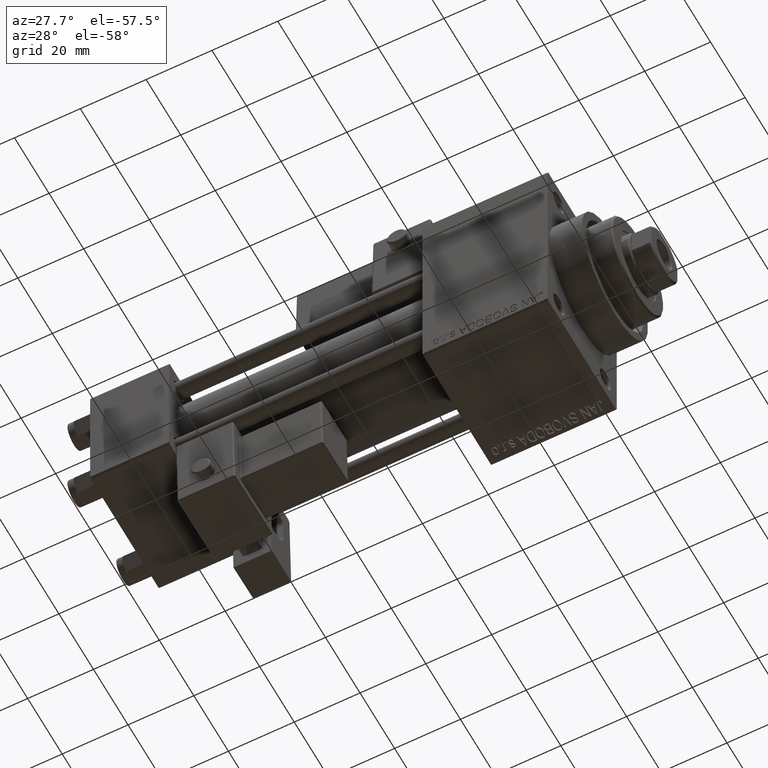
[diagram: clean part render]
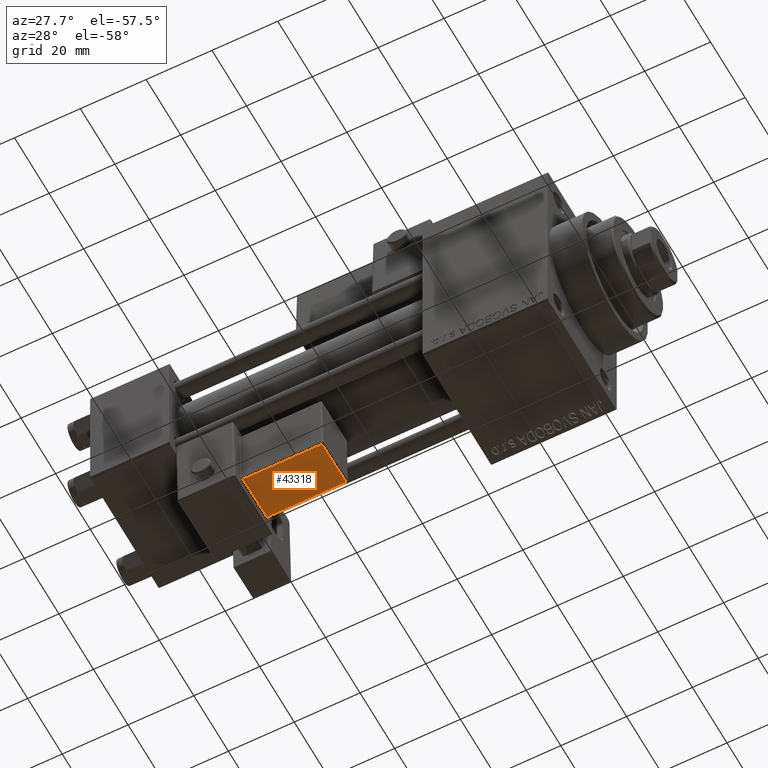
[diagram: same view with one face highlighted and labeled with its STEP entity id]
A machine part, auxiliary view. The second image highlights one B-rep face of the part: STEP entity #43318.
In plain terms, the highlighted planar face has unit normal (-0, -0.0353, 0.9994).
Its self-contained STEP definition (entity closure, byte-faithful):
#306 = CARTESIAN_POINT ( 'NONE',  ( 33.75000000000000000, -14.24999999999999822, 2.000000000000004885 ) ) ;
#4960 = VERTEX_POINT ( 'NONE', #29392 ) ;
#7032 = VECTOR ( 'NONE', #7760, 1000.000000000000000 ) ;
#7534 = PLANE ( 'NONE',  #44309 ) ;
#7748 = VERTEX_POINT ( 'NONE', #18417 ) ;
#7760 = DIRECTION ( 'NONE',  ( -1.000000000000000000, 0.000000000000000000, -1.334402673828313339E-16 ) ) ;
#9266 = EDGE_LOOP ( 'NONE', ( #32947, #36221, #43396, #10886 ) ) ;
#10566 = VECTOR ( 'NONE', #49079, 1000.000000000000000 ) ;
#10886 = ORIENTED_EDGE ( 'NONE', *, *, #36102, .T. ) ;
#13357 = CARTESIAN_POINT ( 'NONE',  ( 33.25000000000000000, -29.25000000000000000, 2.000000000000003109 ) ) ;
#14110 = CARTESIAN_POINT ( 'NONE',  ( 9.250000000000005329, -14.75000000000000000, 2.000000000000001332 ) ) ;
#14524 = VECTOR ( 'NONE', #28614, 1000.000000000000000 ) ;
#15009 = CARTESIAN_POINT ( 'NONE',  ( 33.75000000000000000, -28.74999999999999645, 2.000000000000003109 ) ) ;
#15461 = DIRECTION ( 'NONE',  ( 1.000000000000000000, -0.000000000000000000, 1.334402673828313339E-16 ) ) ;
#15531 = DIRECTION ( 'NONE',  ( 1.000000000000000000, 0.000000000000000000, 1.334402673828313339E-16 ) ) ;
#16049 = CARTESIAN_POINT ( 'NONE',  ( 33.25000000000000000, -14.75000000000000000, 2.000000000000004885 ) ) ;
#18417 = CARTESIAN_POINT ( 'NONE',  ( 33.25000000000000000, -28.74999999999999645, 2.000000000000003109 ) ) ;
#19027 = DIRECTION ( 'NONE',  ( -1.334402673828313339E-16, -1.156482317317871725E-16, 1.000000000000000000 ) ) ;
#20867 = LINE ( 'NONE', #13357, #14524 ) ;
#23517 = EDGE_CURVE ( 'NONE', #7748, #4960, #41976, .T. ) ;
#26647 = CARTESIAN_POINT ( 'NONE',  ( 9.250000000000005329, -14.24999999999999822, 2.000000000000001776 ) ) ;
#27140 = LINE ( 'NONE', #26647, #10566 ) ;
#28614 = DIRECTION ( 'NONE',  ( 5.473822126268816683E-48, -1.000000000000000000, -1.156482317317871725E-16 ) ) ;
#29392 = CARTESIAN_POINT ( 'NONE',  ( 9.250000000000005329, -28.74999999999999645, 2.000000000000000000 ) ) ;
#32947 = ORIENTED_EDGE ( 'NONE', *, *, #35338, .T. ) ;
#34488 = VERTEX_POINT ( 'NONE', #16049 ) ;
#34519 = FACE_OUTER_BOUND ( 'NONE', #9266, .T. ) ;
#35106 = EDGE_CURVE ( 'NONE', #4960, #45718, #27140, .T. ) ;
#35338 = EDGE_CURVE ( 'NONE', #34488, #7748, #20867, .T. ) ;
#36102 = EDGE_CURVE ( 'NONE', #45718, #34488, #44931, .T. ) ;
#36221 = ORIENTED_EDGE ( 'NONE', *, *, #23517, .T. ) ;
#40902 = VECTOR ( 'NONE', #15461, 1000.000000000000000 ) ;
#41188 = CARTESIAN_POINT ( 'NONE',  ( 33.75000000000000000, -14.75000000000000000, 2.000000000000004885 ) ) ;
#41976 = LINE ( 'NONE', #15009, #7032 ) ;
#43318 = ADVANCED_FACE ( 'NONE', ( #34519 ), #7534, .F. ) ;
#43396 = ORIENTED_EDGE ( 'NONE', *, *, #35106, .T. ) ;
#44309 = AXIS2_PLACEMENT_3D ( 'NONE', #306, #19027, #15531 ) ;
#44931 = LINE ( 'NONE', #41188, #40902 ) ;
#45718 = VERTEX_POINT ( 'NONE', #14110 ) ;
#49079 = DIRECTION ( 'NONE',  ( -1.543213096464132036E-32, 1.000000000000000000, 1.156482317317871725E-16 ) ) ;